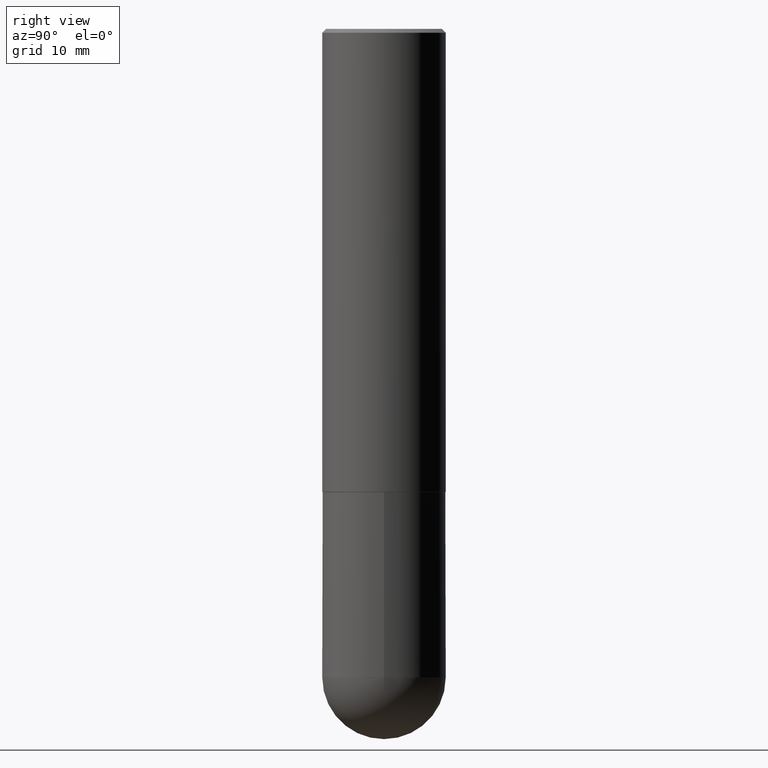
[diagram: clean part render]
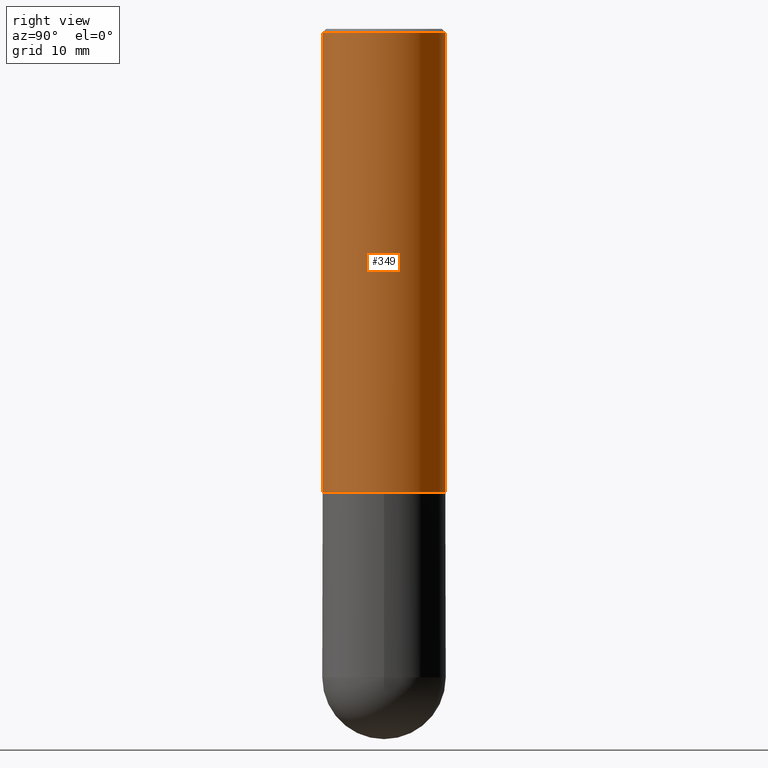
[diagram: same view with one face highlighted and labeled with its STEP entity id]
A machine part, right view. The second image highlights one B-rep face of the part: STEP entity #349.
In plain terms, the highlighted cylindrical surface (partial cylindrical patch) has radius 7.9997 mm, axis along (-0, 0, 1).
Its self-contained STEP definition (entity closure, byte-faithful):
#8 = CARTESIAN_POINT ( 'NONE',  ( -2.199284095337290265E-15, -0.3149500000000001743, 1.099513928764781355E-15 ) ) ;
#14 = VERTEX_POINT ( 'NONE', #22 ) ;
#21 = DIRECTION ( 'NONE',  ( -2.445752866996063776E-29, 3.491074547594160525E-15, 1.000000000000000000 ) ) ;
#22 = CARTESIAN_POINT ( 'NONE',  ( -2.160713844398143363E-15, -0.3149500000000000632, -0.01999999999999896999 ) ) ;
#40 = DIRECTION ( 'NONE',  ( -2.445752866996063776E-29, 3.491074547594160525E-15, 1.000000000000000000 ) ) ;
#48 = CARTESIAN_POINT ( 'NONE',  ( 4.891505733992145558E-31, -6.982149095188345750E-17, -0.02000000000000007327 ) ) ;
#67 = FACE_OUTER_BOUND ( 'NONE', #348, .T. ) ;
#89 = ORIENTED_EDGE ( 'NONE', *, *, #259, .F. ) ;
#90 = CARTESIAN_POINT ( 'NONE',  ( -2.199284095337233467E-15, -0.3149500000000085564, -2.361199999999998411 ) ) ;
#96 = VECTOR ( 'NONE', #21, 39.37007874015748143 ) ;
#105 = VECTOR ( 'NONE', #129, 39.37007874015748143 ) ;
#129 = DIRECTION ( 'NONE',  ( -2.445752866996063776E-29, 3.491074547594160525E-15, 1.000000000000000000 ) ) ;
#130 = ORIENTED_EDGE ( 'NONE', *, *, #335, .T. ) ;
#136 = VERTEX_POINT ( 'NONE', #195 ) ;
#138 = EDGE_CURVE ( 'NONE', #280, #14, #315, .T. ) ;
#141 = DIRECTION ( 'NONE',  ( -6.982962677686264344E-15, -1.000000000000000000, 3.491074547594160130E-15 ) ) ;
#142 = AXIS2_PLACEMENT_3D ( 'NONE', #200, #40, #141 ) ;
#148 = DIRECTION ( 'NONE',  ( -6.982962677686265922E-15, -1.000000000000000000, 3.496670018878889100E-15 ) ) ;
#151 = CARTESIAN_POINT ( 'NONE',  ( 5.774911669551105250E-29, -8.243125221779329781E-15, -2.361199999999999743 ) ) ;
#168 = AXIS2_PLACEMENT_3D ( 'NONE', #151, #281, #403 ) ;
#174 = LINE ( 'NONE', #301, #96 ) ;
#190 = VERTEX_POINT ( 'NONE', #252 ) ;
#195 = CARTESIAN_POINT ( 'NONE',  ( 2.237854346276465567E-15, 0.3149499999999920141, -2.361200000000000632 ) ) ;
#200 = CARTESIAN_POINT ( 'NONE',  ( 0.000000000000000000, 0.000000000000000000, 0.000000000000000000 ) ) ;
#213 = EDGE_CURVE ( 'NONE', #280, #136, #292, .T. ) ;
#217 = DIRECTION ( 'NONE',  ( -2.445752866996063776E-29, 3.491074547594160525E-15, 1.000000000000000000 ) ) ;
#229 = ORIENTED_EDGE ( 'NONE', *, *, #138, .F. ) ;
#242 = CYLINDRICAL_SURFACE ( 'NONE', #142, 0.3149500000000001743 ) ;
#248 = ORIENTED_EDGE ( 'NONE', *, *, #213, .T. ) ;
#252 = CARTESIAN_POINT ( 'NONE',  ( 2.199284095337289871E-15, 0.3149499999999999522, -0.02000000000000117309 ) ) ;
#259 = EDGE_CURVE ( 'NONE', #14, #190, #370, .T. ) ;
#280 = VERTEX_POINT ( 'NONE', #90 ) ;
#281 = DIRECTION ( 'NONE',  ( -2.445752866996063776E-29, 3.491074547594160525E-15, 1.000000000000000000 ) ) ;
#292 = CIRCLE ( 'NONE', #168, 0.3149500000000002853 ) ;
#301 = CARTESIAN_POINT ( 'NONE',  ( 2.237854346276435985E-15, 0.3149500000000001743, -1.099513928764781355E-15 ) ) ;
#315 = LINE ( 'NONE', #8, #105 ) ;
#335 = EDGE_CURVE ( 'NONE', #136, #190, #174, .T. ) ;
#345 = AXIS2_PLACEMENT_3D ( 'NONE', #48, #217, #148 ) ;
#348 = EDGE_LOOP ( 'NONE', ( #248, #130, #89, #229 ) ) ;
#349 = ADVANCED_FACE ( 'NONE', ( #67 ), #242, .T. ) ;
#370 = CIRCLE ( 'NONE', #345, 0.3149500000000000077 ) ;
#403 = DIRECTION ( 'NONE',  ( -6.982962677686265922E-15, -1.000000000000000000, 3.469564049740290009E-15 ) ) ;